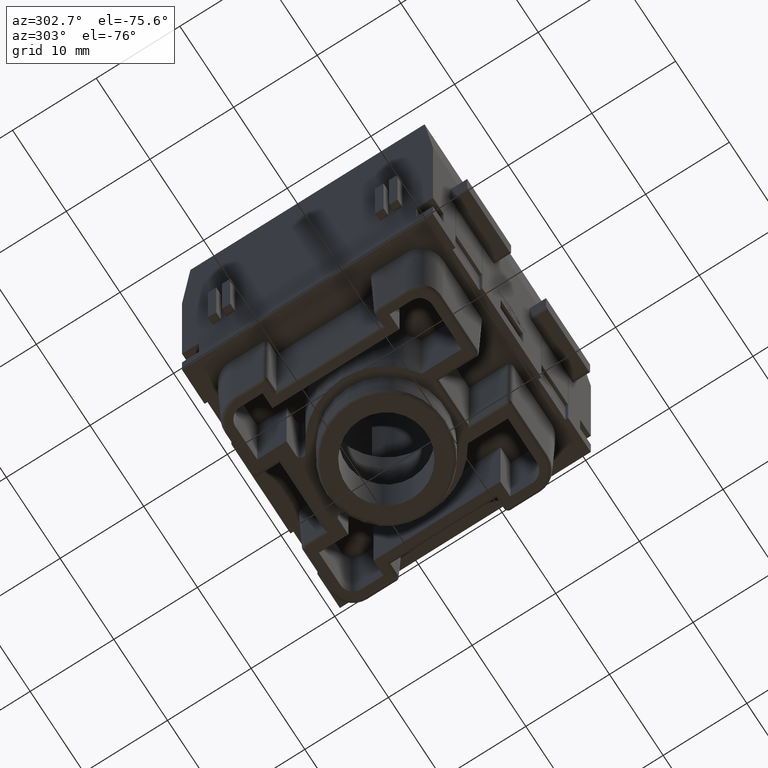
[diagram: clean part render]
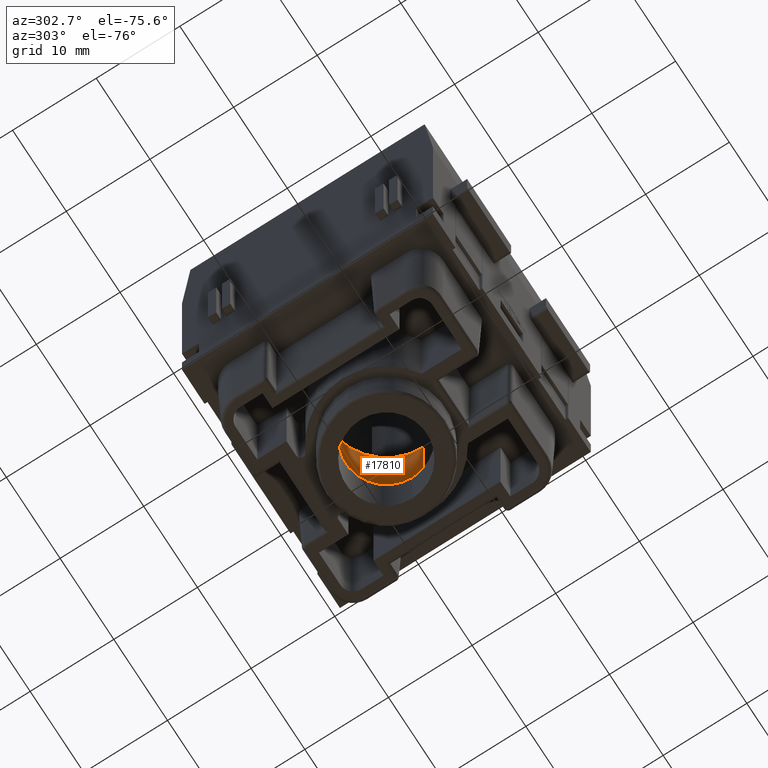
[diagram: same view with one face highlighted and labeled with its STEP entity id]
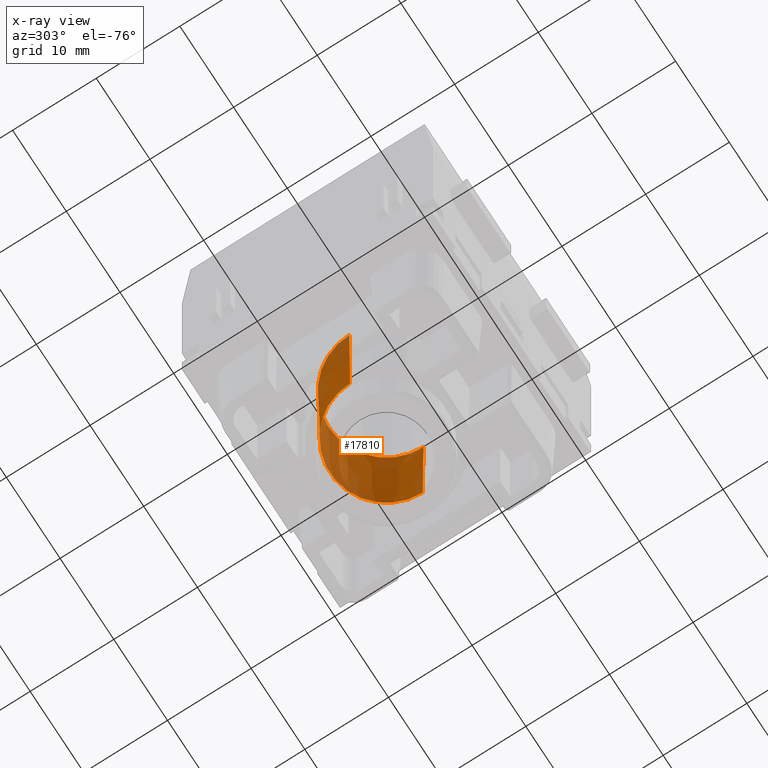
[diagram: x-ray of the same camera — body ghosted, the highlighted face saturated]
A machine part, auxiliary view. The second image highlights one B-rep face of the part: STEP entity #17810.
The next image is the same camera in x-ray: the body ghosted, the highlighted face saturated — about 39% of this face is hidden behind the body in this view.
In plain terms, the highlighted conical surface has half-angle 0.5 deg.
Its self-contained STEP definition (entity closure, byte-faithful):
#17360=CARTESIAN_POINT('',(41.347735,46.757183,-17.));
#17370=DIRECTION('',(0.,1.,-2.52166375596273E-15));
#17380=DIRECTION('',(1.,0.,2.44929359829471E-16));
#17390=AXIS2_PLACEMENT_3D('',#17360,#17370,#17380);
#17400=CONICAL_SURFACE('',#17390,6.75,0.00872664625997165);
#17410=CARTESIAN_POINT('',(41.347735,65.7615462677491,-17.0000000000001)
);
#17420=DIRECTION('',(0.,1.,-2.51858152319989E-15));
#17430=DIRECTION('',(0.,2.51858152319989E-15,1.));
#17440=AXIS2_PLACEMENT_3D('',#17410,#17420,#17430);
#17450=CIRCLE('',#17440,6.9158485656852);
#17460=CARTESIAN_POINT('',(34.4318864343148,65.7615462677491,
-17.0000000000001));
#17470=VERTEX_POINT('',#17460);
#17480=CARTESIAN_POINT('',(41.347735,65.7615462677491,-10.0841514343149)
);
#17490=VERTEX_POINT('',#17480);
#17500=EDGE_CURVE('',#17470,#17490,#17450,.T.);
#17510=ORIENTED_EDGE('',*,*,#17500,.T.);
#17520=CARTESIAN_POINT('',(34.597735,46.757183,-17.));
#17530=DIRECTION('',(-0.00872653549837394,0.999961923064171,
-2.52616075829425E-15));
#17540=VECTOR('',#17530,773.502840990879);
#17550=LINE('',#17520,#17540);
#17560=CARTESIAN_POINT('',(34.597735,46.757183,-17.));
#17570=VERTEX_POINT('',#17560);
#17580=EDGE_CURVE('',#17570,#17470,#17550,.T.);
#17590=ORIENTED_EDGE('',*,*,#17580,.T.);
#17600=CARTESIAN_POINT('',(41.347735,46.757183,-17.));
#17610=DIRECTION('',(5.69551595891477E-31,1.,-2.51767549468094E-15));
#17620=DIRECTION('',(1.,0.,2.44929359829471E-16));
#17630=AXIS2_PLACEMENT_3D('',#17600,#17610,#17620);
#17640=CIRCLE('',#17630,6.75);
#17650=CARTESIAN_POINT('',(48.097735,46.757183,-17.));
#17660=VERTEX_POINT('',#17650);
#17670=EDGE_CURVE('',#17570,#17660,#17640,.T.);
#17680=ORIENTED_EDGE('',*,*,#17670,.F.);
#17690=CARTESIAN_POINT('',(48.097735,46.757183,-17.));
#17700=DIRECTION('',(0.00872653549837394,0.999961923064171,
-2.52156773873371E-15));
#17710=VECTOR('',#17700,773.502840990879);
#17720=LINE('',#17690,#17710);
#17730=CARTESIAN_POINT('',(48.2635835656852,65.7615462677491,
-17.0000000000001));
#17740=VERTEX_POINT('',#17730);
#17750=EDGE_CURVE('',#17660,#17740,#17720,.T.);
#17760=ORIENTED_EDGE('',*,*,#17750,.F.);
#17770=EDGE_CURVE('',#17490,#17740,#17450,.T.);
#17780=ORIENTED_EDGE('',*,*,#17770,.T.);
#17790=EDGE_LOOP('',(#17780,#17760,#17680,#17590,#17510));
#17800=FACE_OUTER_BOUND('',#17790,.T.);
#17810=ADVANCED_FACE('',(#17800),#17400,.F.);